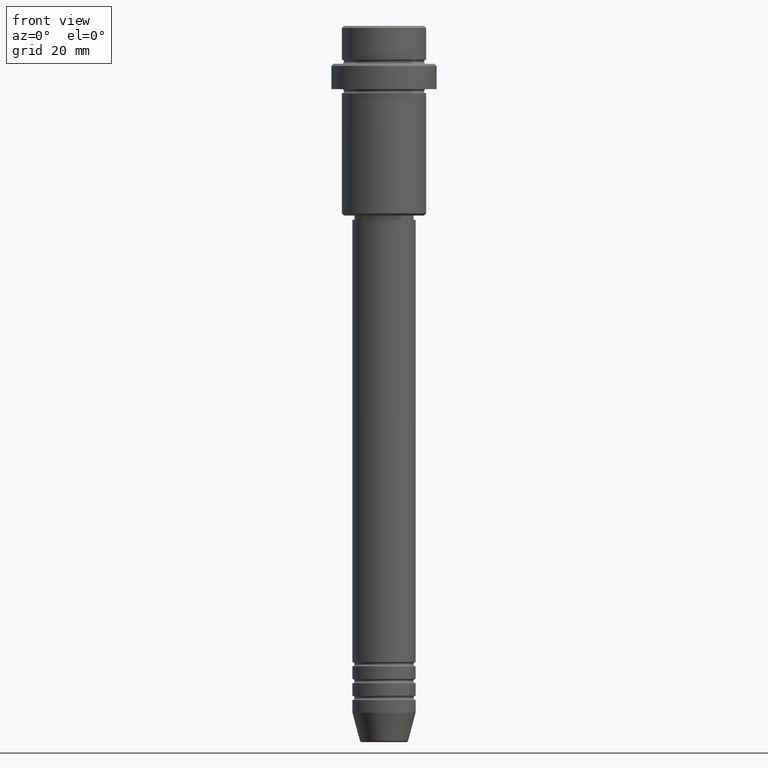
[diagram: clean part render]
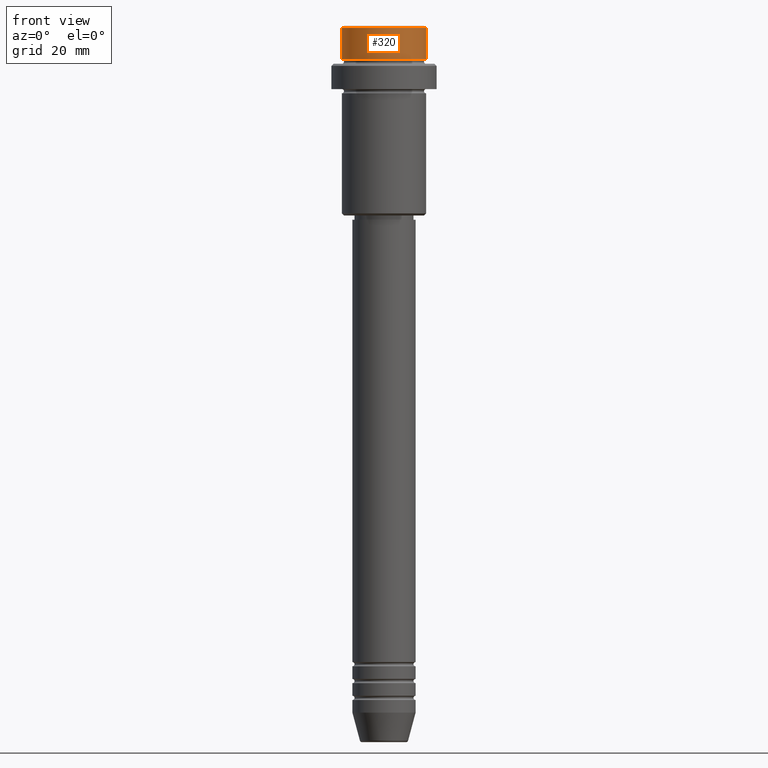
[diagram: same view with one face highlighted and labeled with its STEP entity id]
A machine part, front view. The second image highlights one B-rep face of the part: STEP entity #320.
In plain terms, the highlighted cylindrical surface (partial cylindrical patch) has radius 10 mm, axis along (-0, -0, 1).
Its self-contained STEP definition (entity closure, byte-faithful):
#87 = AXIS2_PLACEMENT_3D ( 'NONE', #122, #982, #1330 ) ;
#115 = CARTESIAN_POINT ( 'NONE',  ( 0.000000000000000000, 0.000000000000000000, 0.000000000000000000 ) ) ;
#122 = CARTESIAN_POINT ( 'NONE',  ( 0.000000000000000000, 0.000000000000000000, -7.999999999999998224 ) ) ;
#207 = CARTESIAN_POINT ( 'NONE',  ( 9.999999999999998224, 0.000000000000000000, 0.000000000000000000 ) ) ;
#278 = VERTEX_POINT ( 'NONE', #1394 ) ;
#306 = LINE ( 'NONE', #207, #1022 ) ;
#307 = VERTEX_POINT ( 'NONE', #895 ) ;
#320 = ADVANCED_FACE ( 'NONE', ( #1100 ), #439, .T. ) ;
#369 = EDGE_CURVE ( 'NONE', #644, #576, #1223, .T. ) ;
#383 = ORIENTED_EDGE ( 'NONE', *, *, #709, .T. ) ;
#410 = CARTESIAN_POINT ( 'NONE',  ( -9.999999999999998224, 1.224646799147353059E-15, -7.999999999999998224 ) ) ;
#439 = CYLINDRICAL_SURFACE ( 'NONE', #762, 9.999999999999998224 ) ;
#463 = DIRECTION ( 'NONE',  ( 1.000000000000000000, 0.000000000000000000, 0.000000000000000000 ) ) ;
#524 = CARTESIAN_POINT ( 'NONE',  ( 0.000000000000000000, 0.000000000000000000, -0.4999999999999692468 ) ) ;
#576 = VERTEX_POINT ( 'NONE', #1196 ) ;
#623 = EDGE_CURVE ( 'NONE', #278, #307, #306, .T. ) ;
#634 = AXIS2_PLACEMENT_3D ( 'NONE', #524, #1404, #749 ) ;
#644 = VERTEX_POINT ( 'NONE', #410 ) ;
#709 = EDGE_CURVE ( 'NONE', #644, #278, #1048, .T. ) ;
#735 = ORIENTED_EDGE ( 'NONE', *, *, #1131, .T. ) ;
#749 = DIRECTION ( 'NONE',  ( 1.000000000000000000, 0.000000000000000000, 0.000000000000000000 ) ) ;
#762 = AXIS2_PLACEMENT_3D ( 'NONE', #115, #988, #463 ) ;
#854 = DIRECTION ( 'NONE',  ( -0.000000000000000000, -0.000000000000000000, 1.000000000000000000 ) ) ;
#895 = CARTESIAN_POINT ( 'NONE',  ( 9.999999999999998224, 0.000000000000000000, -0.4999999999999692468 ) ) ;
#909 = ORIENTED_EDGE ( 'NONE', *, *, #623, .T. ) ;
#940 = ORIENTED_EDGE ( 'NONE', *, *, #369, .F. ) ;
#982 = DIRECTION ( 'NONE',  ( -0.000000000000000000, -0.000000000000000000, 1.000000000000000000 ) ) ;
#988 = DIRECTION ( 'NONE',  ( -0.000000000000000000, -0.000000000000000000, 1.000000000000000000 ) ) ;
#1015 = CARTESIAN_POINT ( 'NONE',  ( -9.999999999999998224, 1.224646799147353059E-15, 0.000000000000000000 ) ) ;
#1022 = VECTOR ( 'NONE', #854, 1000.000000000000000 ) ;
#1024 = CIRCLE ( 'NONE', #634, 9.999999999999998224 ) ;
#1048 = CIRCLE ( 'NONE', #87, 9.999999999999998224 ) ;
#1094 = VECTOR ( 'NONE', #1105, 1000.000000000000000 ) ;
#1100 = FACE_OUTER_BOUND ( 'NONE', #1278, .T. ) ;
#1105 = DIRECTION ( 'NONE',  ( -0.000000000000000000, -0.000000000000000000, 1.000000000000000000 ) ) ;
#1131 = EDGE_CURVE ( 'NONE', #307, #576, #1024, .T. ) ;
#1196 = CARTESIAN_POINT ( 'NONE',  ( -9.999999999999998224, 1.224646799147353059E-15, -0.4999999999999692468 ) ) ;
#1223 = LINE ( 'NONE', #1015, #1094 ) ;
#1278 = EDGE_LOOP ( 'NONE', ( #940, #383, #909, #735 ) ) ;
#1330 = DIRECTION ( 'NONE',  ( 1.000000000000000000, 0.000000000000000000, 0.000000000000000000 ) ) ;
#1394 = CARTESIAN_POINT ( 'NONE',  ( 9.999999999999998224, 0.000000000000000000, -7.999999999999998224 ) ) ;
#1404 = DIRECTION ( 'NONE',  ( 0.000000000000000000, 0.000000000000000000, -1.000000000000000000 ) ) ;